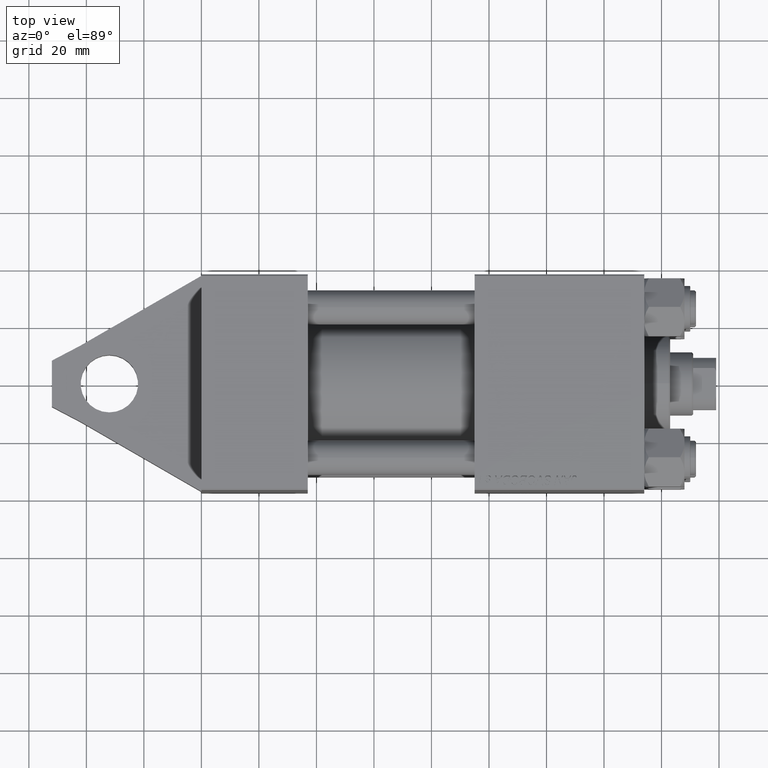
[diagram: clean part render]
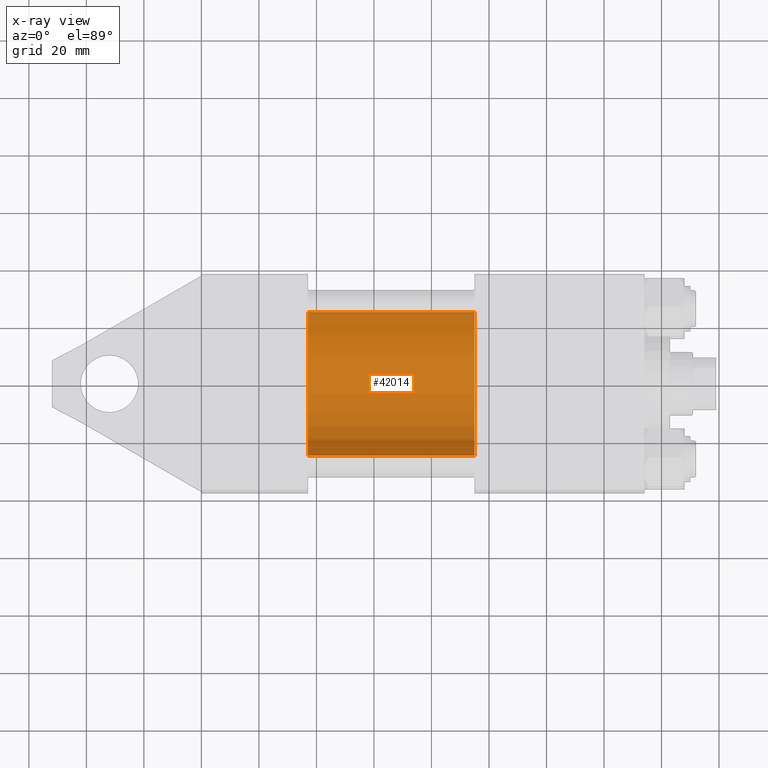
[diagram: x-ray — body ghosted, one internal face saturated and labeled with its STEP entity id]
A machine part, top view, then the same camera in x-ray: the body is ghosted and one INTERNAL B-rep face — a face not visible from any outside direction — is saturated and labeled: STEP entity #42014.
In plain terms, the highlighted cylindrical surface (partial cylindrical patch) has radius 25 mm, axis along (-1, -0, 0).
Its self-contained STEP definition (entity closure, byte-faithful):
#22 = CARTESIAN_POINT ( 'NONE',  ( 37.00000000000000000, 4.595317839031718093E-16, -25.00000000000000000 ) ) ;
#704 = AXIS2_PLACEMENT_3D ( 'NONE', #23540, #45166, #12830 ) ;
#1843 = LINE ( 'NONE', #37686, #41309 ) ;
#2967 = DIRECTION ( 'NONE',  ( -1.000000000000000000, -0.000000000000000000, -0.000000000000000000 ) ) ;
#3395 = EDGE_CURVE ( 'NONE', #27333, #29157, #38368, .T. ) ;
#4329 = AXIS2_PLACEMENT_3D ( 'NONE', #12758, #2967, #23244 ) ;
#8002 = VERTEX_POINT ( 'NONE', #44787 ) ;
#8857 = CARTESIAN_POINT ( 'NONE',  ( 95.00000000000000000, 4.595317839031718093E-16, -25.00000000000000000 ) ) ;
#11083 = CARTESIAN_POINT ( 'NONE',  ( 95.00000000000000000, -2.602085213965210642E-15, 0.000000000000000000 ) ) ;
#11283 = ORIENTED_EDGE ( 'NONE', *, *, #31903, .T. ) ;
#12758 = CARTESIAN_POINT ( 'NONE',  ( 95.00000000000000000, -2.602085213965210642E-15, 0.000000000000000000 ) ) ;
#12830 = DIRECTION ( 'NONE',  ( 0.000000000000000000, 0.000000000000000000, -1.000000000000000000 ) ) ;
#14440 = EDGE_CURVE ( 'NONE', #8002, #19371, #43814, .T. ) ;
#16488 = CYLINDRICAL_SURFACE ( 'NONE', #4329, 25.00000000000000000 ) ;
#18399 = EDGE_CURVE ( 'NONE', #27333, #8002, #31611, .T. ) ;
#19371 = VERTEX_POINT ( 'NONE', #22 ) ;
#19409 = VECTOR ( 'NONE', #38363, 1000.000000000000000 ) ;
#21043 = ORIENTED_EDGE ( 'NONE', *, *, #14440, .F. ) ;
#22572 = DIRECTION ( 'NONE',  ( -1.000000000000000000, -0.000000000000000000, -0.000000000000000000 ) ) ;
#23244 = DIRECTION ( 'NONE',  ( 0.000000000000000000, 0.000000000000000000, 1.000000000000000000 ) ) ;
#23540 = CARTESIAN_POINT ( 'NONE',  ( 37.00000000000000000, -2.602085213965210642E-15, 0.000000000000000000 ) ) ;
#24402 = CARTESIAN_POINT ( 'NONE',  ( 95.00000000000000000, -2.602085213965210642E-15, 25.00000000000000000 ) ) ;
#24777 = EDGE_LOOP ( 'NONE', ( #33087, #11283, #21043, #37028 ) ) ;
#27333 = VERTEX_POINT ( 'NONE', #36623 ) ;
#29157 = VERTEX_POINT ( 'NONE', #8857 ) ;
#31611 = LINE ( 'NONE', #24402, #19409 ) ;
#31903 = EDGE_CURVE ( 'NONE', #29157, #19371, #1843, .T. ) ;
#33087 = ORIENTED_EDGE ( 'NONE', *, *, #3395, .T. ) ;
#36623 = CARTESIAN_POINT ( 'NONE',  ( 95.00000000000000000, -2.602085213965210642E-15, 25.00000000000000000 ) ) ;
#37028 = ORIENTED_EDGE ( 'NONE', *, *, #18399, .F. ) ;
#37686 = CARTESIAN_POINT ( 'NONE',  ( 95.00000000000000000, 4.595317839031718093E-16, -25.00000000000000000 ) ) ;
#37897 = FACE_OUTER_BOUND ( 'NONE', #24777, .T. ) ;
#38363 = DIRECTION ( 'NONE',  ( -1.000000000000000000, -0.000000000000000000, -0.000000000000000000 ) ) ;
#38368 = CIRCLE ( 'NONE', #40599, 25.00000000000000000 ) ;
#40599 = AXIS2_PLACEMENT_3D ( 'NONE', #11083, #42263, #43179 ) ;
#41309 = VECTOR ( 'NONE', #22572, 1000.000000000000000 ) ;
#42014 = ADVANCED_FACE ( 'NONE', ( #37897 ), #16488, .F. ) ;
#42263 = DIRECTION ( 'NONE',  ( 1.000000000000000000, 0.000000000000000000, 0.000000000000000000 ) ) ;
#43179 = DIRECTION ( 'NONE',  ( 0.000000000000000000, 0.000000000000000000, -1.000000000000000000 ) ) ;
#43814 = CIRCLE ( 'NONE', #704, 25.00000000000000000 ) ;
#44787 = CARTESIAN_POINT ( 'NONE',  ( 37.00000000000000000, -2.602085213965210642E-15, 25.00000000000000000 ) ) ;
#45166 = DIRECTION ( 'NONE',  ( 1.000000000000000000, 0.000000000000000000, 0.000000000000000000 ) ) ;